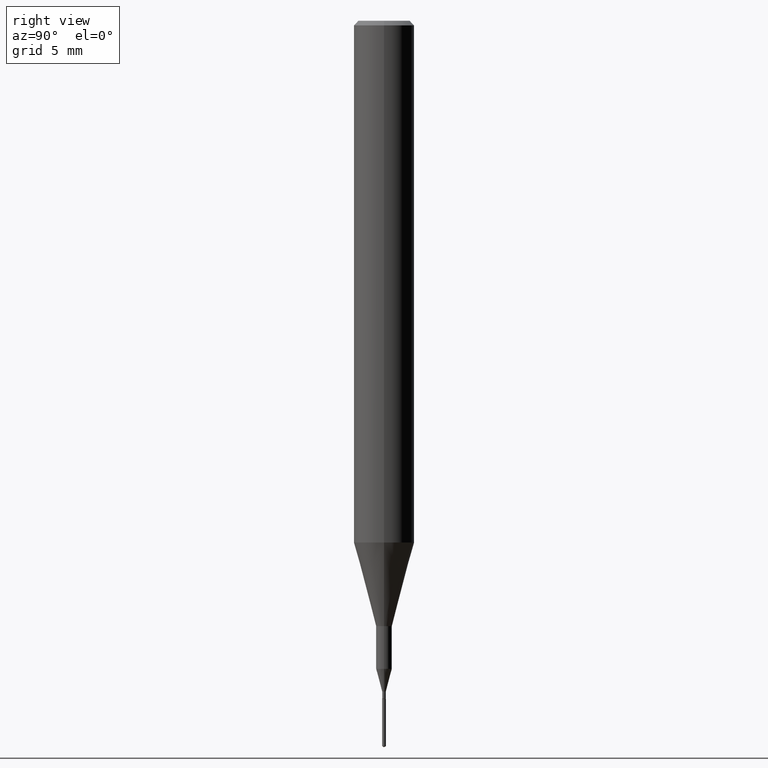
[diagram: clean part render]
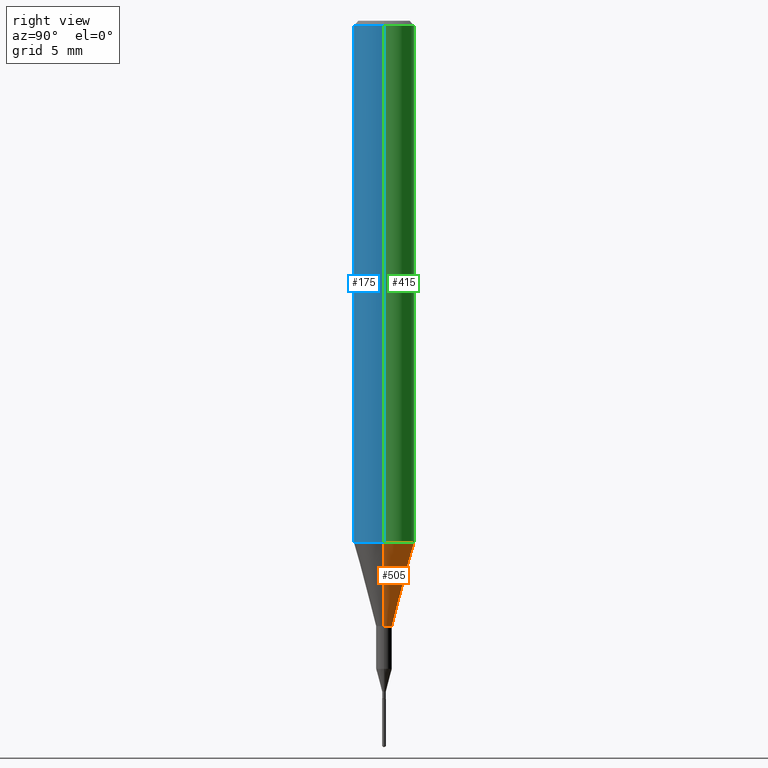
[diagram: same view with three faces highlighted in distinct colors, each labeled with its STEP entity id]
A machine part, right view with three faces highlighted in distinct colors.
Their STEP definitions:

[orange] entity #505 — the highlighted conical surface has half-angle 15 deg.
#1 = CARTESIAN_POINT ( 'NONE',  ( 2.634730117954813298E-29, -3.761696332605275695E-15, -1.077392650149939346 ) ) ;
#20 = EDGE_LOOP ( 'NONE', ( #133, #345, #22, #68 ) ) ;
#22 = ORIENTED_EDGE ( 'NONE', *, *, #290, .F. ) ;
#36 = CARTESIAN_POINT ( 'NONE',  ( -0.01624999999999999709, -4.403123558425820763E-15, -1.250000000000000000 ) ) ;
#62 = CIRCLE ( 'NONE', #148, 0.01624999999999999709 ) ;
#68 = ORIENTED_EDGE ( 'NONE', *, *, #493, .F. ) ;
#84 = DIRECTION ( 'NONE',  ( 1.000000000000000000, -6.982962677686264344E-15, 0.000000000000000000 ) ) ;
#89 = VECTOR ( 'NONE', #366, 39.37007874015747433 ) ;
#111 = CARTESIAN_POINT ( 'NONE',  ( 0.01624999999999999709, -4.477824817066334148E-15, -1.250000000000000000 ) ) ;
#114 = EDGE_CURVE ( 'NONE', #389, #504, #62, .T. ) ;
#116 = VECTOR ( 'NONE', #139, 39.37007874015747433 ) ;
#133 = ORIENTED_EDGE ( 'NONE', *, *, #114, .T. ) ;
#139 = DIRECTION ( 'NONE',  ( 0.2588190451025214611, 1.565188264969621573E-15, 0.9659258262890682012 ) ) ;
#148 = AXIS2_PLACEMENT_3D ( 'NONE', #283, #447, #371 ) ;
#168 = CONICAL_SURFACE ( 'NONE', #249, 0.06250000000000012490, 0.2617993877991501295 ) ;
#174 = CARTESIAN_POINT ( 'NONE',  ( -0.06250000000000012490, -3.317607122755211895E-15, -1.077392650149939346 ) ) ;
#181 = CARTESIAN_POINT ( 'NONE',  ( 2.634730117954813298E-29, -3.761696332605275695E-15, -1.077392650149939346 ) ) ;
#182 = AXIS2_PLACEMENT_3D ( 'NONE', #181, #326, #239 ) ;
#235 = CARTESIAN_POINT ( 'NONE',  ( 0.06250000000000012490, -4.198131499960668153E-15, -1.077392650149939346 ) ) ;
#239 = DIRECTION ( 'NONE',  ( 1.000000000000000000, -6.982962677686264344E-15, 0.000000000000000000 ) ) ;
#249 = AXIS2_PLACEMENT_3D ( 'NONE', #1, #329, #84 ) ;
#282 = VERTEX_POINT ( 'NONE', #536 ) ;
#283 = CARTESIAN_POINT ( 'NONE',  ( 3.056836007731421306E-29, -4.364351673553932471E-15, -1.250000000000000000 ) ) ;
#290 = EDGE_CURVE ( 'NONE', #559, #282, #294, .T. ) ;
#294 = CIRCLE ( 'NONE', #182, 0.06250000000000012490 ) ;
#317 = LINE ( 'NONE', #494, #116 ) ;
#326 = DIRECTION ( 'NONE',  ( -2.445468806185136597E-29, 3.491481338843145583E-15, 1.000000000000000000 ) ) ;
#329 = DIRECTION ( 'NONE',  ( -2.445468806185136597E-29, 3.491481338843145583E-15, 1.000000000000000000 ) ) ;
#345 = ORIENTED_EDGE ( 'NONE', *, *, #517, .T. ) ;
#360 = LINE ( 'NONE', #174, #89 ) ;
#366 = DIRECTION ( 'NONE',  ( -0.2588190451025214611, 5.211531920934551042E-15, 0.9659258262890682012 ) ) ;
#371 = DIRECTION ( 'NONE',  ( 1.000000000000000000, -6.982962677686288799E-15, 0.000000000000000000 ) ) ;
#389 = VERTEX_POINT ( 'NONE', #111 ) ;
#447 = DIRECTION ( 'NONE',  ( -2.445468806185136597E-29, 3.491481338843145583E-15, 1.000000000000000000 ) ) ;
#456 = FACE_OUTER_BOUND ( 'NONE', #20, .T. ) ;
#493 = EDGE_CURVE ( 'NONE', #389, #559, #317, .T. ) ;
#494 = CARTESIAN_POINT ( 'NONE',  ( 0.06250000000000012490, -4.198131499960668153E-15, -1.077392650149939346 ) ) ;
#504 = VERTEX_POINT ( 'NONE', #36 ) ;
#505 = ADVANCED_FACE ( 'NONE', ( #456 ), #168, .T. ) ;
#517 = EDGE_CURVE ( 'NONE', #504, #282, #360, .T. ) ;
#536 = CARTESIAN_POINT ( 'NONE',  ( -0.06250000000000012490, -3.317607122755211895E-15, -1.077392650149939346 ) ) ;
#559 = VERTEX_POINT ( 'NONE', #235 ) ;

[blue] entity #175 — the highlighted cylindrical surface (edge-blend (fillet) strip) has radius 1.5875 mm, axis along (-0, 0, 1).
#12 = EDGE_CURVE ( 'NONE', #282, #559, #17, .T. ) ;
#14 = DIRECTION ( 'NONE',  ( 1.000000000000000000, -6.982962677686266711E-15, 0.000000000000000000 ) ) ;
#17 = CIRCLE ( 'NONE', #92, 0.06250000000000012490 ) ;
#38 = VECTOR ( 'NONE', #230, 39.37007874015748143 ) ;
#40 = LINE ( 'NONE', #227, #38 ) ;
#50 = EDGE_LOOP ( 'NONE', ( #149, #589, #193, #378 ) ) ;
#72 = CARTESIAN_POINT ( 'NONE',  ( 0.06250000000000000000, -4.691678049070464390E-16, -0.009375000000000067307 ) ) ;
#92 = AXIS2_PLACEMENT_3D ( 'NONE', #200, #156, #340 ) ;
#110 = VERTEX_POINT ( 'NONE', #547 ) ;
#120 = DIRECTION ( 'NONE',  ( 1.000000000000000000, -6.982962677686266711E-15, 4.876176775795935793E-29 ) ) ;
#149 = ORIENTED_EDGE ( 'NONE', *, *, #314, .F. ) ;
#156 = DIRECTION ( 'NONE',  ( -2.445468806185136597E-29, 3.491481338843145583E-15, 1.000000000000000000 ) ) ;
#162 = AXIS2_PLACEMENT_3D ( 'NONE', #225, #396, #120 ) ;
#172 = LINE ( 'NONE', #173, #342 ) ;
#173 = CARTESIAN_POINT ( 'NONE',  ( 0.06250000000000006939, -4.364351673553921624E-16, 3.047610484872463374E-30 ) ) ;
#175 = ADVANCED_FACE ( 'NONE', ( #528 ), #404, .T. ) ;
#179 = EDGE_CURVE ( 'NONE', #559, #385, #172, .T. ) ;
#193 = ORIENTED_EDGE ( 'NONE', *, *, #179, .T. ) ;
#200 = CARTESIAN_POINT ( 'NONE',  ( 2.634730117954813298E-29, -3.761696332605275695E-15, -1.077392650149939346 ) ) ;
#206 = CIRCLE ( 'NONE', #531, 0.06250000000000000000 ) ;
#225 = CARTESIAN_POINT ( 'NONE',  ( 0.000000000000000000, 0.000000000000000000, 0.000000000000000000 ) ) ;
#227 = CARTESIAN_POINT ( 'NONE',  ( -0.06250000000000006939, 4.440892098500631092E-16, -3.074334431409319267E-30 ) ) ;
#230 = DIRECTION ( 'NONE',  ( -2.445468806185136877E-29, 3.491481338843145188E-15, 1.000000000000000000 ) ) ;
#235 = CARTESIAN_POINT ( 'NONE',  ( 0.06250000000000012490, -4.198131499960668153E-15, -1.077392650149939346 ) ) ;
#282 = VERTEX_POINT ( 'NONE', #536 ) ;
#314 = EDGE_CURVE ( 'NONE', #282, #110, #40, .T. ) ;
#340 = DIRECTION ( 'NONE',  ( 1.000000000000000000, -6.982962677686264344E-15, 0.000000000000000000 ) ) ;
#342 = VECTOR ( 'NONE', #534, 39.37007874015748143 ) ;
#352 = EDGE_CURVE ( 'NONE', #110, #385, #206, .T. ) ;
#378 = ORIENTED_EDGE ( 'NONE', *, *, #352, .F. ) ;
#383 = CARTESIAN_POINT ( 'NONE',  ( 2.292627005798582375E-31, -3.273263755165472650E-17, -0.009375000000000067307 ) ) ;
#385 = VERTEX_POINT ( 'NONE', #72 ) ;
#396 = DIRECTION ( 'NONE',  ( -2.445468806185136597E-29, 3.491481338843145583E-15, 1.000000000000000000 ) ) ;
#404 = CYLINDRICAL_SURFACE ( 'NONE', #162, 0.06250000000000006939 ) ;
#514 = DIRECTION ( 'NONE',  ( -2.445468806185136597E-29, 3.491481338843145583E-15, 1.000000000000000000 ) ) ;
#528 = FACE_OUTER_BOUND ( 'NONE', #50, .T. ) ;
#531 = AXIS2_PLACEMENT_3D ( 'NONE', #383, #514, #14 ) ;
#534 = DIRECTION ( 'NONE',  ( -2.445468806185136877E-29, 3.491481338843145188E-15, 1.000000000000000000 ) ) ;
#536 = CARTESIAN_POINT ( 'NONE',  ( -0.06250000000000012490, -3.317607122755211895E-15, -1.077392650149939346 ) ) ;
#547 = CARTESIAN_POINT ( 'NONE',  ( -0.06250000000000000000, -1.453125275228401137E-15, -0.009375000000000067307 ) ) ;
#559 = VERTEX_POINT ( 'NONE', #235 ) ;
#589 = ORIENTED_EDGE ( 'NONE', *, *, #12, .T. ) ;

[green] entity #415 — the highlighted cylindrical surface (edge-blend (fillet) strip) has radius 1.5875 mm, axis along (-0, 0, 1).
#26 = EDGE_CURVE ( 'NONE', #385, #110, #428, .T. ) ;
#38 = VECTOR ( 'NONE', #230, 39.37007874015748143 ) ;
#40 = LINE ( 'NONE', #227, #38 ) ;
#72 = CARTESIAN_POINT ( 'NONE',  ( 0.06250000000000000000, -4.691678049070464390E-16, -0.009375000000000067307 ) ) ;
#110 = VERTEX_POINT ( 'NONE', #547 ) ;
#160 = ORIENTED_EDGE ( 'NONE', *, *, #179, .F. ) ;
#172 = LINE ( 'NONE', #173, #342 ) ;
#173 = CARTESIAN_POINT ( 'NONE',  ( 0.06250000000000006939, -4.364351673553921624E-16, 3.047610484872463374E-30 ) ) ;
#179 = EDGE_CURVE ( 'NONE', #559, #385, #172, .T. ) ;
#181 = CARTESIAN_POINT ( 'NONE',  ( 2.634730117954813298E-29, -3.761696332605275695E-15, -1.077392650149939346 ) ) ;
#182 = AXIS2_PLACEMENT_3D ( 'NONE', #181, #326, #239 ) ;
#192 = CYLINDRICAL_SURFACE ( 'NONE', #384, 0.06250000000000006939 ) ;
#227 = CARTESIAN_POINT ( 'NONE',  ( -0.06250000000000006939, 4.440892098500631092E-16, -3.074334431409319267E-30 ) ) ;
#230 = DIRECTION ( 'NONE',  ( -2.445468806185136877E-29, 3.491481338843145188E-15, 1.000000000000000000 ) ) ;
#235 = CARTESIAN_POINT ( 'NONE',  ( 0.06250000000000012490, -4.198131499960668153E-15, -1.077392650149939346 ) ) ;
#237 = DIRECTION ( 'NONE',  ( -2.445468806185136597E-29, 3.491481338843145583E-15, 1.000000000000000000 ) ) ;
#239 = DIRECTION ( 'NONE',  ( 1.000000000000000000, -6.982962677686264344E-15, 0.000000000000000000 ) ) ;
#282 = VERTEX_POINT ( 'NONE', #536 ) ;
#289 = DIRECTION ( 'NONE',  ( 1.000000000000000000, -6.982962677686266711E-15, 4.876176775795935793E-29 ) ) ;
#290 = EDGE_CURVE ( 'NONE', #559, #282, #294, .T. ) ;
#294 = CIRCLE ( 'NONE', #182, 0.06250000000000012490 ) ;
#314 = EDGE_CURVE ( 'NONE', #282, #110, #40, .T. ) ;
#326 = DIRECTION ( 'NONE',  ( -2.445468806185136597E-29, 3.491481338843145583E-15, 1.000000000000000000 ) ) ;
#335 = EDGE_LOOP ( 'NONE', ( #564, #557, #466, #160 ) ) ;
#342 = VECTOR ( 'NONE', #534, 39.37007874015748143 ) ;
#374 = DIRECTION ( 'NONE',  ( -2.445468806185136597E-29, 3.491481338843145583E-15, 1.000000000000000000 ) ) ;
#384 = AXIS2_PLACEMENT_3D ( 'NONE', #510, #374, #289 ) ;
#385 = VERTEX_POINT ( 'NONE', #72 ) ;
#393 = DIRECTION ( 'NONE',  ( 1.000000000000000000, -6.982962677686266711E-15, 0.000000000000000000 ) ) ;
#415 = ADVANCED_FACE ( 'NONE', ( #476 ), #192, .T. ) ;
#428 = CIRCLE ( 'NONE', #578, 0.06250000000000000000 ) ;
#466 = ORIENTED_EDGE ( 'NONE', *, *, #26, .F. ) ;
#476 = FACE_OUTER_BOUND ( 'NONE', #335, .T. ) ;
#477 = CARTESIAN_POINT ( 'NONE',  ( 2.292627005798582375E-31, -3.273263755165472650E-17, -0.009375000000000067307 ) ) ;
#510 = CARTESIAN_POINT ( 'NONE',  ( 0.000000000000000000, 0.000000000000000000, 0.000000000000000000 ) ) ;
#534 = DIRECTION ( 'NONE',  ( -2.445468806185136877E-29, 3.491481338843145188E-15, 1.000000000000000000 ) ) ;
#536 = CARTESIAN_POINT ( 'NONE',  ( -0.06250000000000012490, -3.317607122755211895E-15, -1.077392650149939346 ) ) ;
#547 = CARTESIAN_POINT ( 'NONE',  ( -0.06250000000000000000, -1.453125275228401137E-15, -0.009375000000000067307 ) ) ;
#557 = ORIENTED_EDGE ( 'NONE', *, *, #314, .T. ) ;
#559 = VERTEX_POINT ( 'NONE', #235 ) ;
#564 = ORIENTED_EDGE ( 'NONE', *, *, #290, .T. ) ;
#578 = AXIS2_PLACEMENT_3D ( 'NONE', #477, #237, #393 ) ;